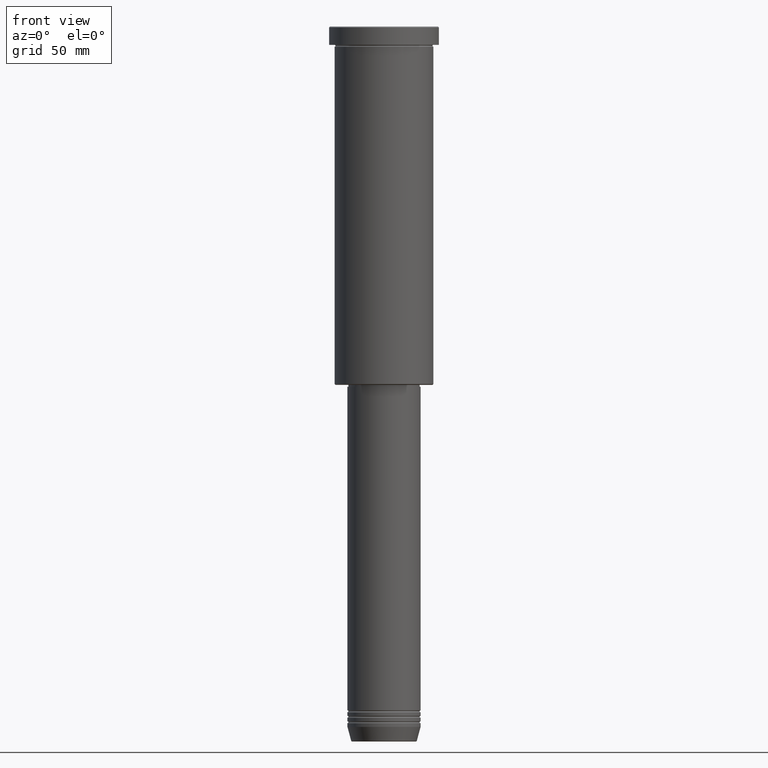
[diagram: clean part render]
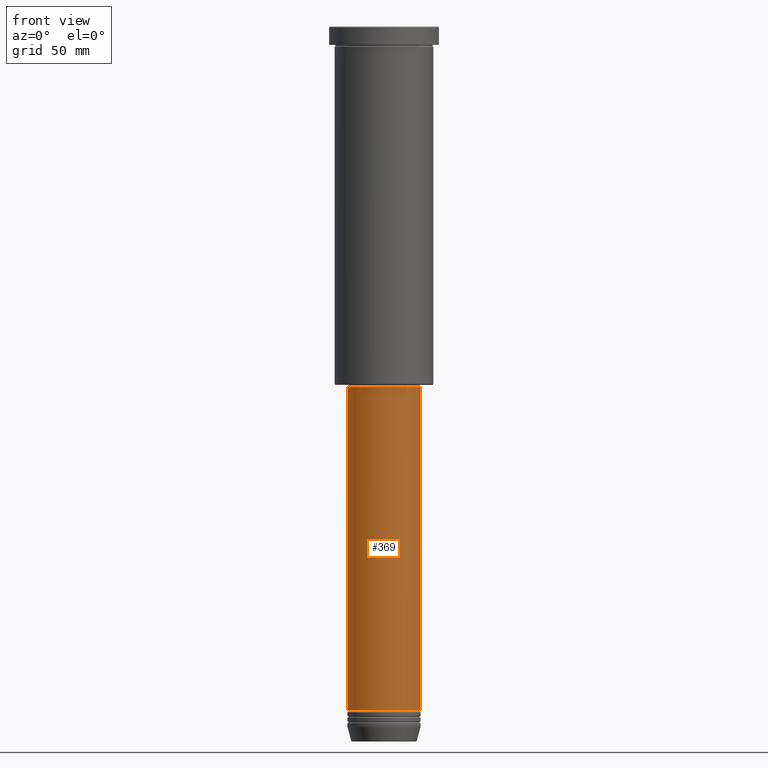
[diagram: same view with one face highlighted and labeled with its STEP entity id]
A machine part, front view. The second image highlights one B-rep face of the part: STEP entity #369.
In plain terms, the highlighted cylindrical surface (edge-blend (fillet) strip) has radius 20 mm, axis along (-0, -0, 1).
Its self-contained STEP definition (entity closure, byte-faithful):
#8 = LINE ( 'NONE', #653, #971 ) ;
#20 = DIRECTION ( 'NONE',  ( 1.000000000000000000, 0.000000000000000000, 0.000000000000000000 ) ) ;
#47 = EDGE_LOOP ( 'NONE', ( #426, #240, #1023, #694 ) ) ;
#50 = DIRECTION ( 'NONE',  ( 1.000000000000000000, 0.000000000000000000, 0.000000000000000000 ) ) ;
#114 = EDGE_CURVE ( 'NONE', #743, #154, #579, .T. ) ;
#130 = VECTOR ( 'NONE', #191, 1000.000000000000000 ) ;
#135 = CARTESIAN_POINT ( 'NONE',  ( 0.000000000000000000, 0.000000000000000000, 0.000000000000000000 ) ) ;
#147 = VERTEX_POINT ( 'NONE', #468 ) ;
#154 = VERTEX_POINT ( 'NONE', #822 ) ;
#191 = DIRECTION ( 'NONE',  ( -0.000000000000000000, -0.000000000000000000, 1.000000000000000000 ) ) ;
#226 = CYLINDRICAL_SURFACE ( 'NONE', #1005, 20.00000000000000000 ) ;
#240 = ORIENTED_EDGE ( 'NONE', *, *, #114, .T. ) ;
#309 = CARTESIAN_POINT ( 'NONE',  ( 0.000000000000000000, 0.000000000000000000, -196.9999999999998579 ) ) ;
#357 = LINE ( 'NONE', #962, #130 ) ;
#369 = ADVANCED_FACE ( 'NONE', ( #943 ), #226, .T. ) ;
#389 = DIRECTION ( 'NONE',  ( -0.000000000000000000, -0.000000000000000000, 1.000000000000000000 ) ) ;
#426 = ORIENTED_EDGE ( 'NONE', *, *, #682, .F. ) ;
#468 = CARTESIAN_POINT ( 'NONE',  ( 20.00000000000000000, 0.000000000000000000, -196.9999999999998579 ) ) ;
#502 = VERTEX_POINT ( 'NONE', #885 ) ;
#579 = CIRCLE ( 'NONE', #931, 20.00000000000000000 ) ;
#653 = CARTESIAN_POINT ( 'NONE',  ( 20.00000000000000000, 0.000000000000000000, 0.000000000000000000 ) ) ;
#682 = EDGE_CURVE ( 'NONE', #743, #502, #357, .T. ) ;
#694 = ORIENTED_EDGE ( 'NONE', *, *, #929, .F. ) ;
#733 = EDGE_CURVE ( 'NONE', #154, #147, #8, .T. ) ;
#743 = VERTEX_POINT ( 'NONE', #778 ) ;
#778 = CARTESIAN_POINT ( 'NONE',  ( -20.00000000000000000, 2.449293598294706513E-15, -374.0000000000000000 ) ) ;
#822 = CARTESIAN_POINT ( 'NONE',  ( 20.00000000000000000, 0.000000000000000000, -374.0000000000000000 ) ) ;
#827 = CIRCLE ( 'NONE', #1026, 20.00000000000000000 ) ;
#885 = CARTESIAN_POINT ( 'NONE',  ( -20.00000000000000000, 2.449293598294706513E-15, -196.9999999999998579 ) ) ;
#929 = EDGE_CURVE ( 'NONE', #502, #147, #827, .T. ) ;
#931 = AXIS2_PLACEMENT_3D ( 'NONE', #1139, #1042, #1036 ) ;
#935 = DIRECTION ( 'NONE',  ( -0.000000000000000000, -0.000000000000000000, 1.000000000000000000 ) ) ;
#943 = FACE_OUTER_BOUND ( 'NONE', #47, .T. ) ;
#962 = CARTESIAN_POINT ( 'NONE',  ( -20.00000000000000000, 2.449293598294706513E-15, 0.000000000000000000 ) ) ;
#971 = VECTOR ( 'NONE', #389, 1000.000000000000000 ) ;
#1005 = AXIS2_PLACEMENT_3D ( 'NONE', #135, #1118, #50 ) ;
#1023 = ORIENTED_EDGE ( 'NONE', *, *, #733, .T. ) ;
#1026 = AXIS2_PLACEMENT_3D ( 'NONE', #309, #935, #20 ) ;
#1036 = DIRECTION ( 'NONE',  ( 1.000000000000000000, 0.000000000000000000, 0.000000000000000000 ) ) ;
#1042 = DIRECTION ( 'NONE',  ( -0.000000000000000000, -0.000000000000000000, 1.000000000000000000 ) ) ;
#1118 = DIRECTION ( 'NONE',  ( -0.000000000000000000, -0.000000000000000000, 1.000000000000000000 ) ) ;
#1139 = CARTESIAN_POINT ( 'NONE',  ( 0.000000000000000000, 0.000000000000000000, -374.0000000000000000 ) ) ;